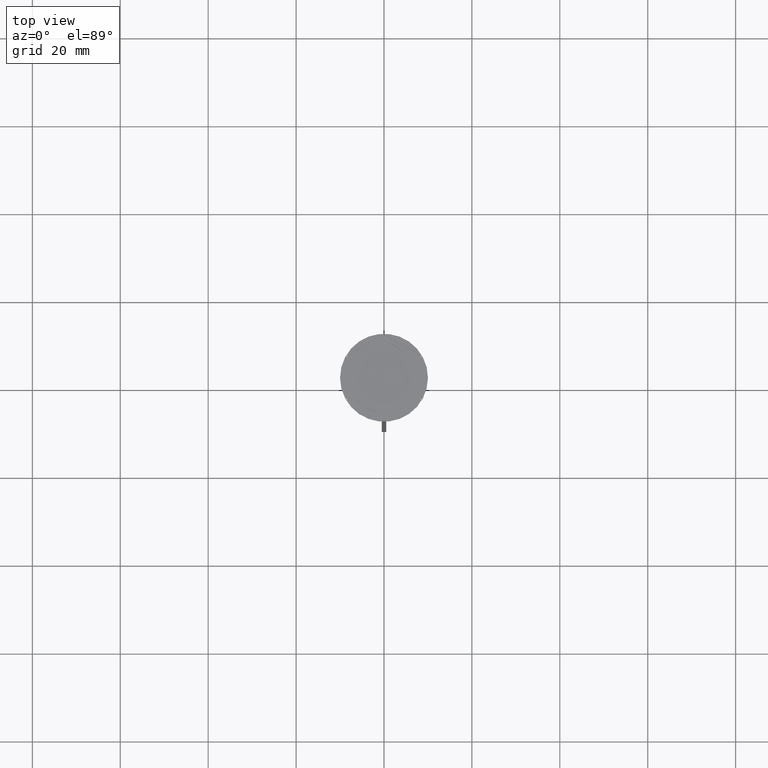
[diagram: clean part render]
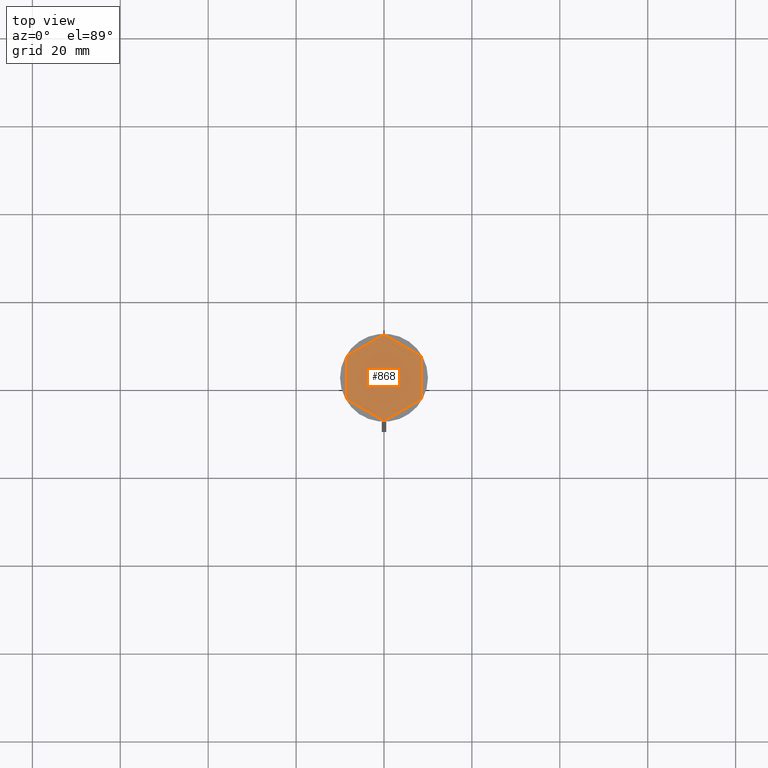
[diagram: same view with one face highlighted and labeled with its STEP entity id]
A machine part, top view. The second image highlights one B-rep face of the part: STEP entity #868.
In plain terms, the highlighted planar face has unit normal (0, 0, 1).
Its self-contained STEP definition (entity closure, byte-faithful):
#1 = DIRECTION ( 'NONE',  ( 1.000000000000000000, 0.000000000000000000, 0.000000000000000000 ) ) ;
#5 = CARTESIAN_POINT ( 'NONE',  ( 7.500000000000000000, -2.783882181415009427, -1.000000000000000888 ) ) ;
#6 = DIRECTION ( 'NONE',  ( -0.000000000000000000, -0.000000000000000000, -1.000000000000000000 ) ) ;
#18 = EDGE_CURVE ( 'NONE', #1184, #2209, #1162, .T. ) ;
#69 = EDGE_LOOP ( 'NONE', ( #621, #2295, #2608 ) ) ;
#74 = CARTESIAN_POINT ( 'NONE',  ( 1.339087309751760380, 7.887131619090794743, -1.000000000000000888 ) ) ;
#94 = DIRECTION ( 'NONE',  ( 1.000000000000000000, 0.000000000000000000, 0.000000000000000000 ) ) ;
#111 = CARTESIAN_POINT ( 'NONE',  ( 8.500000000000000000, 4.673328578219146934, -1.000000000000000000 ) ) ;
#117 = CIRCLE ( 'NONE', #2065, 9.699999999999990408 ) ;
#149 = PLANE ( 'NONE',  #1623 ) ;
#153 = CIRCLE ( 'NONE', #973, 9.699999999999990408 ) ;
#155 = VECTOR ( 'NONE', #2202, 1000.000000000000227 ) ;
#156 = DIRECTION ( 'NONE',  ( -0.000000000000000000, -0.000000000000000000, -1.000000000000000000 ) ) ;
#161 = FACE_BOUND ( 'NONE', #1231, .T. ) ;
#185 = EDGE_CURVE ( 'NONE', #2352, #1116, #153, .T. ) ;
#187 = CARTESIAN_POINT ( 'NONE',  ( -0.2027787310304009494, 9.697880221277303647, -1.000000000000000000 ) ) ;
#198 = CARTESIAN_POINT ( 'NONE',  ( 8.297221268969593666, 5.024551643058155825, -1.000000000000000000 ) ) ;
#201 = EDGE_CURVE ( 'NONE', #304, #1594, #1792, .T. ) ;
#209 = CARTESIAN_POINT ( 'NONE',  ( 6.160912690248237844, 5.103249437675785316, -1.000000000000000888 ) ) ;
#240 = CIRCLE ( 'NONE', #2619, 8.000000000000000000 ) ;
#249 = DIRECTION ( 'NONE',  ( -0.000000000000000000, -0.000000000000000000, -1.000000000000000000 ) ) ;
#253 = DIRECTION ( 'NONE',  ( -0.8660254037844387076, -0.4999999999999997780, 0.000000000000000000 ) ) ;
#267 = DIRECTION ( 'NONE',  ( -0.000000000000000000, -0.000000000000000000, -1.000000000000000000 ) ) ;
#277 = AXIS2_PLACEMENT_3D ( 'NONE', #1680, #1843, #1 ) ;
#301 = EDGE_CURVE ( 'NONE', #878, #1874, #997, .T. ) ;
#304 = VERTEX_POINT ( 'NONE', #5 ) ;
#307 = LINE ( 'NONE', #988, #155 ) ;
#309 = ORIENTED_EDGE ( 'NONE', *, *, #201, .F. ) ;
#324 = CIRCLE ( 'NONE', #2182, 9.699999999999990408 ) ;
#330 = EDGE_CURVE ( 'NONE', #1594, #304, #2086, .T. ) ;
#340 = CARTESIAN_POINT ( 'NONE',  ( -1.339087309751759047, 7.887131619090796519, -1.000000000000000888 ) ) ;
#343 = VERTEX_POINT ( 'NONE', #111 ) ;
#360 = CARTESIAN_POINT ( 'NONE',  ( 0.2027787310304044188, -9.697880221277303647, -1.000000000000000000 ) ) ;
#412 = DIRECTION ( 'NONE',  ( 1.000000000000000000, 0.000000000000000000, 0.000000000000000000 ) ) ;
#439 = CARTESIAN_POINT ( 'NONE',  ( -6.160912690248241397, 5.103249437675783540, -1.000000000000000888 ) ) ;
#446 = EDGE_LOOP ( 'NONE', ( #2169, #2559, #1035, #1530, #650, #2476, #2178, #1837, #1507, #2458, #2197, #1597 ) ) ;
#458 = DIRECTION ( 'NONE',  ( 1.000000000000000000, 0.000000000000000000, 0.000000000000000000 ) ) ;
#482 = EDGE_LOOP ( 'NONE', ( #1357, #869 ) ) ;
#501 = CARTESIAN_POINT ( 'NONE',  ( 0.000000000000000000, 0.000000000000000000, -1.000000000000000000 ) ) ;
#527 = DIRECTION ( 'NONE',  ( 0.000000000000000000, -1.000000000000000000, 0.000000000000000000 ) ) ;
#543 = CARTESIAN_POINT ( 'NONE',  ( -1.339087309751766819, -7.887131619090794743, -1.000000000000000888 ) ) ;
#550 = VECTOR ( 'NONE', #1684, 1000.000000000000000 ) ;
#592 = EDGE_CURVE ( 'NONE', #2209, #1184, #628, .T. ) ;
#603 = CIRCLE ( 'NONE', #2278, 8.000000000000000000 ) ;
#609 = CARTESIAN_POINT ( 'NONE',  ( 0.000000000000000000, 0.000000000000000000, -1.000000000000000000 ) ) ;
#611 = ORIENTED_EDGE ( 'NONE', *, *, #2455, .F. ) ;
#621 = ORIENTED_EDGE ( 'NONE', *, *, #1065, .F. ) ;
#622 = CARTESIAN_POINT ( 'NONE',  ( -0.2027787310304044188, -9.697880221277303647, -1.000000000000000000 ) ) ;
#628 = CIRCLE ( 'NONE', #277, 8.000000000000000000 ) ;
#650 = ORIENTED_EDGE ( 'NONE', *, *, #1209, .T. ) ;
#677 = LINE ( 'NONE', #2524, #1322 ) ;
#690 = CARTESIAN_POINT ( 'NONE',  ( 7.500000000000001776, 2.783882181415006762, -1.000000000000000888 ) ) ;
#713 = VERTEX_POINT ( 'NONE', #187 ) ;
#755 = EDGE_CURVE ( 'NONE', #1078, #343, #324, .T. ) ;
#771 = CIRCLE ( 'NONE', #2616, 9.699999999999990408 ) ;
#808 = EDGE_CURVE ( 'NONE', #2434, #2630, #771, .T. ) ;
#811 = EDGE_CURVE ( 'NONE', #2205, #1082, #847, .T. ) ;
#838 = DIRECTION ( 'NONE',  ( 1.000000000000000000, 0.000000000000000000, 0.000000000000000000 ) ) ;
#847 = CIRCLE ( 'NONE', #2358, 8.000000000000000000 ) ;
#859 = VECTOR ( 'NONE', #527, 1000.000000000000000 ) ;
#867 = CARTESIAN_POINT ( 'NONE',  ( 8.500000000000000000, -4.673328578219146934, -1.000000000000000000 ) ) ;
#868 = ADVANCED_FACE ( 'NONE', ( #161, #992, #2193, #1583, #1554, #1606, #2383 ), #149, .T. ) ;
#869 = ORIENTED_EDGE ( 'NONE', *, *, #18, .F. ) ;
#878 = VERTEX_POINT ( 'NONE', #543 ) ;
#904 = CARTESIAN_POINT ( 'NONE',  ( -8.500000000000000000, -4.673328578219146934, -1.000000000000000000 ) ) ;
#965 = EDGE_CURVE ( 'NONE', #1082, #1885, #1353, .T. ) ;
#973 = AXIS2_PLACEMENT_3D ( 'NONE', #1613, #156, #412 ) ;
#988 = CARTESIAN_POINT ( 'NONE',  ( 8.729740977282959667E-16, -9.814954576223637872, -1.000000000000000000 ) ) ;
#989 = LINE ( 'NONE', #2381, #859 ) ;
#992 = FACE_BOUND ( 'NONE', #2529, .T. ) ;
#997 = LINE ( 'NONE', #1009, #1750 ) ;
#1003 = CARTESIAN_POINT ( 'NONE',  ( 0.000000000000000000, 0.000000000000000000, -1.000000000000000000 ) ) ;
#1008 = EDGE_CURVE ( 'NONE', #2434, #343, #1636, .T. ) ;
#1009 = CARTESIAN_POINT ( 'NONE',  ( -7.500000000000000000, -4.330127018922193649, -1.000000000000000888 ) ) ;
#1035 = ORIENTED_EDGE ( 'NONE', *, *, #1559, .T. ) ;
#1036 = DIRECTION ( 'NONE',  ( -0.8660254037844384856, 0.5000000000000002220, 0.000000000000000000 ) ) ;
#1047 = EDGE_LOOP ( 'NONE', ( #1679, #2104 ) ) ;
#1065 = EDGE_CURVE ( 'NONE', #1885, #2205, #2445, .T. ) ;
#1070 = VERTEX_POINT ( 'NONE', #622 ) ;
#1078 = VERTEX_POINT ( 'NONE', #198 ) ;
#1079 = CARTESIAN_POINT ( 'NONE',  ( 0.000000000000000000, 9.814954576223636096, -1.000000000000000000 ) ) ;
#1082 = VERTEX_POINT ( 'NONE', #2269 ) ;
#1084 = DIRECTION ( 'NONE',  ( -0.000000000000000000, -0.000000000000000000, -1.000000000000000000 ) ) ;
#1101 = CARTESIAN_POINT ( 'NONE',  ( 1.339087309751762156, -7.887131619090794743, -1.000000000000000888 ) ) ;
#1105 = CARTESIAN_POINT ( 'NONE',  ( 0.2027787310304000890, 9.697880221277303647, -1.000000000000000000 ) ) ;
#1116 = VERTEX_POINT ( 'NONE', #1215 ) ;
#1121 = CARTESIAN_POINT ( 'NONE',  ( -8.297221268969593666, -5.024551643058157602, -1.000000000000000000 ) ) ;
#1162 = LINE ( 'NONE', #2408, #1701 ) ;
#1175 = CARTESIAN_POINT ( 'NONE',  ( -8.500000000000000000, -4.907477288111819824, -1.000000000000000000 ) ) ;
#1184 = VERTEX_POINT ( 'NONE', #439 ) ;
#1209 = EDGE_CURVE ( 'NONE', #713, #1116, #1306, .T. ) ;
#1215 = CARTESIAN_POINT ( 'NONE',  ( -8.297221268969593666, 5.024551643058155825, -1.000000000000000000 ) ) ;
#1227 = DIRECTION ( 'NONE',  ( 1.000000000000000000, 0.000000000000000000, 0.000000000000000000 ) ) ;
#1229 = EDGE_CURVE ( 'NONE', #1635, #1556, #677, .T. ) ;
#1231 = EDGE_LOOP ( 'NONE', ( #2276, #2637 ) ) ;
#1250 = CARTESIAN_POINT ( 'NONE',  ( 0.000000000000000000, 0.000000000000000000, -1.000000000000000000 ) ) ;
#1252 = VERTEX_POINT ( 'NONE', #1105 ) ;
#1275 = AXIS2_PLACEMENT_3D ( 'NONE', #1250, #2075, #1851 ) ;
#1280 = LINE ( 'NONE', #2119, #2106 ) ;
#1284 = DIRECTION ( 'NONE',  ( 1.000000000000000000, 0.000000000000000000, 0.000000000000000000 ) ) ;
#1294 = EDGE_CURVE ( 'NONE', #2548, #2630, #307, .T. ) ;
#1306 = LINE ( 'NONE', #1079, #2097 ) ;
#1307 = DIRECTION ( 'NONE',  ( 1.000000000000000000, 0.000000000000000000, 0.000000000000000000 ) ) ;
#1322 = VECTOR ( 'NONE', #2130, 1000.000000000000000 ) ;
#1353 = LINE ( 'NONE', #1566, #1754 ) ;
#1357 = ORIENTED_EDGE ( 'NONE', *, *, #592, .F. ) ;
#1362 = EDGE_CURVE ( 'NONE', #2454, #1070, #1363, .T. ) ;
#1363 = LINE ( 'NONE', #1175, #2062 ) ;
#1368 = DIRECTION ( 'NONE',  ( 1.000000000000000000, 0.000000000000000000, -0.000000000000000000 ) ) ;
#1391 = CARTESIAN_POINT ( 'NONE',  ( 0.000000000000000000, 0.000000000000000000, -1.000000000000000000 ) ) ;
#1412 = AXIS2_PLACEMENT_3D ( 'NONE', #1477, #249, #2293 ) ;
#1426 = EDGE_CURVE ( 'NONE', #1556, #1635, #240, .T. ) ;
#1437 = DIRECTION ( 'NONE',  ( 0.000000000000000000, 0.000000000000000000, 1.000000000000000000 ) ) ;
#1443 = VECTOR ( 'NONE', #1670, 1000.000000000000000 ) ;
#1449 = CIRCLE ( 'NONE', #1275, 8.000000000000000000 ) ;
#1468 = DIRECTION ( 'NONE',  ( 0.000000000000000000, 0.000000000000000000, 1.000000000000000000 ) ) ;
#1477 = CARTESIAN_POINT ( 'NONE',  ( 0.000000000000000000, 0.000000000000000000, -1.000000000000000000 ) ) ;
#1486 = EDGE_CURVE ( 'NONE', #1619, #2113, #1449, .T. ) ;
#1487 = ORIENTED_EDGE ( 'NONE', *, *, #301, .F. ) ;
#1494 = CIRCLE ( 'NONE', #1412, 9.699999999999990408 ) ;
#1507 = ORIENTED_EDGE ( 'NONE', *, *, #1362, .T. ) ;
#1526 = DIRECTION ( 'NONE',  ( 1.000000000000000000, 0.000000000000000000, 0.000000000000000000 ) ) ;
#1530 = ORIENTED_EDGE ( 'NONE', *, *, #1640, .F. ) ;
#1554 = FACE_BOUND ( 'NONE', #69, .T. ) ;
#1556 = VERTEX_POINT ( 'NONE', #209 ) ;
#1557 = EDGE_CURVE ( 'NONE', #2454, #1582, #2407, .T. ) ;
#1559 = EDGE_CURVE ( 'NONE', #1078, #1252, #2481, .T. ) ;
#1566 = CARTESIAN_POINT ( 'NONE',  ( -7.500000000000000000, 4.330127018922190985, -1.000000000000000888 ) ) ;
#1582 = VERTEX_POINT ( 'NONE', #904 ) ;
#1583 = FACE_BOUND ( 'NONE', #2262, .T. ) ;
#1594 = VERTEX_POINT ( 'NONE', #690 ) ;
#1597 = ORIENTED_EDGE ( 'NONE', *, *, #808, .F. ) ;
#1606 = FACE_BOUND ( 'NONE', #482, .T. ) ;
#1613 = CARTESIAN_POINT ( 'NONE',  ( 0.000000000000000000, 0.000000000000000000, -1.000000000000000000 ) ) ;
#1619 = VERTEX_POINT ( 'NONE', #1101 ) ;
#1623 = AXIS2_PLACEMENT_3D ( 'NONE', #1391, #2597, #1368 ) ;
#1631 = DIRECTION ( 'NONE',  ( 0.000000000000000000, 0.000000000000000000, 1.000000000000000000 ) ) ;
#1635 = VERTEX_POINT ( 'NONE', #74 ) ;
#1636 = LINE ( 'NONE', #2672, #2618 ) ;
#1637 = CARTESIAN_POINT ( 'NONE',  ( -8.500000000000000000, 4.673328578219146934, -1.000000000000000000 ) ) ;
#1640 = EDGE_CURVE ( 'NONE', #713, #1252, #1494, .T. ) ;
#1657 = CARTESIAN_POINT ( 'NONE',  ( 0.000000000000000000, 0.000000000000000000, -1.000000000000000000 ) ) ;
#1670 = DIRECTION ( 'NONE',  ( -2.003086131649545704E-16, -1.000000000000000000, 0.000000000000000000 ) ) ;
#1679 = ORIENTED_EDGE ( 'NONE', *, *, #1486, .F. ) ;
#1680 = CARTESIAN_POINT ( 'NONE',  ( 0.000000000000000000, 0.000000000000000000, -1.000000000000000000 ) ) ;
#1684 = DIRECTION ( 'NONE',  ( -0.8660254037844388186, 0.4999999999999997224, 0.000000000000000000 ) ) ;
#1688 = CARTESIAN_POINT ( 'NONE',  ( 0.000000000000000000, 0.000000000000000000, -1.000000000000000000 ) ) ;
#1701 = VECTOR ( 'NONE', #2564, 999.9999999999998863 ) ;
#1714 = AXIS2_PLACEMENT_3D ( 'NONE', #1862, #6, #838 ) ;
#1723 = CARTESIAN_POINT ( 'NONE',  ( -6.160912690248237844, -5.103249437675787092, -1.000000000000000888 ) ) ;
#1746 = CARTESIAN_POINT ( 'NONE',  ( 0.000000000000000000, 0.000000000000000000, -1.000000000000000000 ) ) ;
#1749 = CARTESIAN_POINT ( 'NONE',  ( 7.500000000000000000, -4.330127018922195425, -1.000000000000000888 ) ) ;
#1750 = VECTOR ( 'NONE', #1036, 1000.000000000000114 ) ;
#1754 = VECTOR ( 'NONE', #2624, 1000.000000000000000 ) ;
#1792 = CIRCLE ( 'NONE', #2569, 8.000000000000000000 ) ;
#1837 = ORIENTED_EDGE ( 'NONE', *, *, #1557, .F. ) ;
#1843 = DIRECTION ( 'NONE',  ( 0.000000000000000000, 0.000000000000000000, 1.000000000000000000 ) ) ;
#1851 = DIRECTION ( 'NONE',  ( 1.000000000000000000, 0.000000000000000000, 0.000000000000000000 ) ) ;
#1862 = CARTESIAN_POINT ( 'NONE',  ( 0.000000000000000000, 0.000000000000000000, -1.000000000000000000 ) ) ;
#1874 = VERTEX_POINT ( 'NONE', #1723 ) ;
#1885 = VERTEX_POINT ( 'NONE', #1942 ) ;
#1893 = DIRECTION ( 'NONE',  ( -0.8660254037844387076, -0.4999999999999997780, 0.000000000000000000 ) ) ;
#1942 = CARTESIAN_POINT ( 'NONE',  ( -7.500000000000000000, 2.783882181415010759, -1.000000000000000888 ) ) ;
#1952 = DIRECTION ( 'NONE',  ( 0.000000000000000000, 0.000000000000000000, 1.000000000000000000 ) ) ;
#2039 = DIRECTION ( 'NONE',  ( 1.000000000000000000, 0.000000000000000000, 0.000000000000000000 ) ) ;
#2043 = DIRECTION ( 'NONE',  ( 0.000000000000000000, 1.000000000000000000, 0.000000000000000000 ) ) ;
#2058 = EDGE_CURVE ( 'NONE', #2548, #1070, #117, .T. ) ;
#2062 = VECTOR ( 'NONE', #2189, 1000.000000000000114 ) ;
#2065 = AXIS2_PLACEMENT_3D ( 'NONE', #2110, #1084, #1526 ) ;
#2075 = DIRECTION ( 'NONE',  ( 0.000000000000000000, 0.000000000000000000, 1.000000000000000000 ) ) ;
#2086 = LINE ( 'NONE', #1749, #1443 ) ;
#2097 = VECTOR ( 'NONE', #1893, 1000.000000000000114 ) ;
#2104 = ORIENTED_EDGE ( 'NONE', *, *, #2484, .F. ) ;
#2106 = VECTOR ( 'NONE', #253, 1000.000000000000114 ) ;
#2110 = CARTESIAN_POINT ( 'NONE',  ( 0.000000000000000000, 0.000000000000000000, -1.000000000000000000 ) ) ;
#2113 = VERTEX_POINT ( 'NONE', #2610 ) ;
#2115 = CARTESIAN_POINT ( 'NONE',  ( 8.500000000000000000, 4.907477288111819824, -1.000000000000000000 ) ) ;
#2119 = CARTESIAN_POINT ( 'NONE',  ( -1.301042606982605321E-15, -8.660254037844387298, -1.000000000000000888 ) ) ;
#2130 = DIRECTION ( 'NONE',  ( 0.8660254037844387076, -0.4999999999999998890, 0.000000000000000000 ) ) ;
#2153 = CARTESIAN_POINT ( 'NONE',  ( 0.000000000000000000, 0.000000000000000000, -1.000000000000000000 ) ) ;
#2169 = ORIENTED_EDGE ( 'NONE', *, *, #1008, .T. ) ;
#2174 = CARTESIAN_POINT ( 'NONE',  ( 8.297221268969593666, -5.024551643058152273, -1.000000000000000000 ) ) ;
#2178 = ORIENTED_EDGE ( 'NONE', *, *, #2629, .T. ) ;
#2182 = AXIS2_PLACEMENT_3D ( 'NONE', #2153, #267, #1284 ) ;
#2186 = AXIS2_PLACEMENT_3D ( 'NONE', #1003, #1468, #1227 ) ;
#2189 = DIRECTION ( 'NONE',  ( 0.8660254037844387076, -0.4999999999999997780, 0.000000000000000000 ) ) ;
#2192 = ORIENTED_EDGE ( 'NONE', *, *, #330, .F. ) ;
#2193 = FACE_BOUND ( 'NONE', #1047, .T. ) ;
#2197 = ORIENTED_EDGE ( 'NONE', *, *, #1294, .T. ) ;
#2202 = DIRECTION ( 'NONE',  ( 0.8660254037844385966, 0.5000000000000000000, 0.000000000000000000 ) ) ;
#2205 = VERTEX_POINT ( 'NONE', #2626 ) ;
#2209 = VERTEX_POINT ( 'NONE', #340 ) ;
#2262 = EDGE_LOOP ( 'NONE', ( #611, #1487 ) ) ;
#2269 = CARTESIAN_POINT ( 'NONE',  ( -7.500000000000000000, -2.783882181415010759, -1.000000000000000888 ) ) ;
#2276 = ORIENTED_EDGE ( 'NONE', *, *, #1426, .F. ) ;
#2278 = AXIS2_PLACEMENT_3D ( 'NONE', #1688, #2512, #1307 ) ;
#2293 = DIRECTION ( 'NONE',  ( 1.000000000000000000, 2.486899575160350651E-14, 0.000000000000000000 ) ) ;
#2295 = ORIENTED_EDGE ( 'NONE', *, *, #965, .F. ) ;
#2314 = DIRECTION ( 'NONE',  ( -0.000000000000000000, -0.000000000000000000, -1.000000000000000000 ) ) ;
#2352 = VERTEX_POINT ( 'NONE', #1637 ) ;
#2358 = AXIS2_PLACEMENT_3D ( 'NONE', #501, #1952, #94 ) ;
#2381 = CARTESIAN_POINT ( 'NONE',  ( -8.500000000000000000, 4.907477288111818936, -1.000000000000000000 ) ) ;
#2383 = FACE_OUTER_BOUND ( 'NONE', #446, .T. ) ;
#2407 = CIRCLE ( 'NONE', #1714, 9.699999999999990408 ) ;
#2408 = CARTESIAN_POINT ( 'NONE',  ( 8.673617379884035472E-16, 8.660254037844385522, -1.000000000000000888 ) ) ;
#2434 = VERTEX_POINT ( 'NONE', #867 ) ;
#2445 = CIRCLE ( 'NONE', #2186, 8.000000000000000000 ) ;
#2454 = VERTEX_POINT ( 'NONE', #1121 ) ;
#2455 = EDGE_CURVE ( 'NONE', #1874, #878, #603, .T. ) ;
#2458 = ORIENTED_EDGE ( 'NONE', *, *, #2058, .F. ) ;
#2476 = ORIENTED_EDGE ( 'NONE', *, *, #185, .F. ) ;
#2479 = DIRECTION ( 'NONE',  ( 1.000000000000000000, 0.000000000000000000, 0.000000000000000000 ) ) ;
#2481 = LINE ( 'NONE', #2115, #550 ) ;
#2484 = EDGE_CURVE ( 'NONE', #2113, #1619, #1280, .T. ) ;
#2512 = DIRECTION ( 'NONE',  ( 0.000000000000000000, 0.000000000000000000, 1.000000000000000000 ) ) ;
#2524 = CARTESIAN_POINT ( 'NONE',  ( 7.500000000000001776, 4.330127018922192761, -1.000000000000000888 ) ) ;
#2529 = EDGE_LOOP ( 'NONE', ( #309, #2192 ) ) ;
#2548 = VERTEX_POINT ( 'NONE', #360 ) ;
#2559 = ORIENTED_EDGE ( 'NONE', *, *, #755, .F. ) ;
#2564 = DIRECTION ( 'NONE',  ( 0.8660254037844387076, 0.5000000000000001110, -0.000000000000000000 ) ) ;
#2569 = AXIS2_PLACEMENT_3D ( 'NONE', #609, #1631, #2479 ) ;
#2597 = DIRECTION ( 'NONE',  ( 0.000000000000000000, 0.000000000000000000, 1.000000000000000000 ) ) ;
#2608 = ORIENTED_EDGE ( 'NONE', *, *, #811, .F. ) ;
#2610 = CARTESIAN_POINT ( 'NONE',  ( 6.160912690248236068, -5.103249437675787981, -1.000000000000000888 ) ) ;
#2616 = AXIS2_PLACEMENT_3D ( 'NONE', #1746, #2314, #458 ) ;
#2618 = VECTOR ( 'NONE', #2043, 1000.000000000000000 ) ;
#2619 = AXIS2_PLACEMENT_3D ( 'NONE', #1657, #1437, #2039 ) ;
#2624 = DIRECTION ( 'NONE',  ( 0.000000000000000000, 1.000000000000000000, 0.000000000000000000 ) ) ;
#2626 = CARTESIAN_POINT ( 'NONE',  ( -8.000000000000000000, 0.000000000000000000, -1.000000000000000000 ) ) ;
#2629 = EDGE_CURVE ( 'NONE', #2352, #1582, #989, .T. ) ;
#2630 = VERTEX_POINT ( 'NONE', #2174 ) ;
#2637 = ORIENTED_EDGE ( 'NONE', *, *, #1229, .F. ) ;
#2672 = CARTESIAN_POINT ( 'NONE',  ( 8.500000000000000000, -4.907477288111818936, -1.000000000000000000 ) ) ;